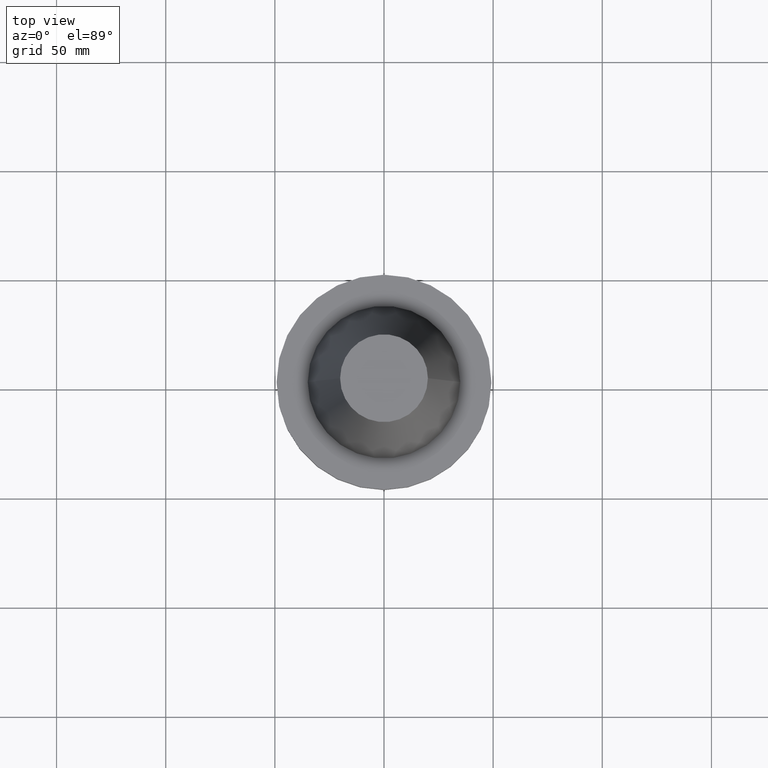
[diagram: clean part render]
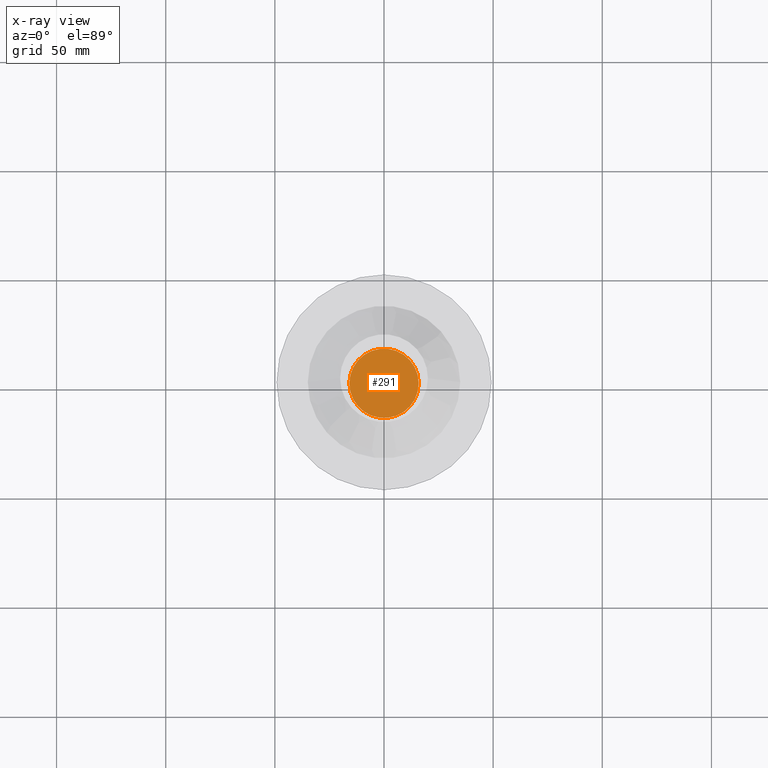
[diagram: x-ray — body ghosted, one internal face saturated and labeled with its STEP entity id]
A machine part, top view, then the same camera in x-ray: the body is ghosted and one INTERNAL B-rep face — a face not visible from any outside direction — is saturated and labeled: STEP entity #291.
In plain terms, the highlighted planar face has unit normal (0, -0, 1).
Its self-contained STEP definition (entity closure, byte-faithful):
#55 = DIRECTION ( 'NONE',  ( 1.000000000000000000, 0.000000000000000000, 0.000000000000000000 ) ) ;
#91 = CARTESIAN_POINT ( 'NONE',  ( 0.000000000000000000, 34.92499999999999716, -35.04999999999999716 ) ) ;
#121 = DIRECTION ( 'NONE',  ( 1.000000000000000000, 0.000000000000000000, 0.000000000000000000 ) ) ;
#133 = EDGE_CURVE ( 'NONE', #371, #552, #737, .T. ) ;
#162 = AXIS2_PLACEMENT_3D ( 'NONE', #189, #662, #121 ) ;
#165 = AXIS2_PLACEMENT_3D ( 'NONE', #183, #424, #55 ) ;
#183 = CARTESIAN_POINT ( 'NONE',  ( 0.000000000000000000, 0.000000000000000000, -35.04999999999999716 ) ) ;
#189 = CARTESIAN_POINT ( 'NONE',  ( 0.000000000000000000, 0.000000000000000000, -35.04999999999999716 ) ) ;
#210 = EDGE_CURVE ( 'NONE', #552, #371, #734, .T. ) ;
#240 = CARTESIAN_POINT ( 'NONE',  ( 15.87499999999999289, 0.000000000000000000, -35.04999999999999716 ) ) ;
#291 = ADVANCED_FACE ( 'NONE', ( #550 ), #434, .F. ) ;
#323 = DIRECTION ( 'NONE',  ( 1.000000000000000000, 0.000000000000000000, 0.000000000000000000 ) ) ;
#337 = CARTESIAN_POINT ( 'NONE',  ( -15.87499999999999289, 1.944126793646422449E-15, -35.04999999999999716 ) ) ;
#353 = AXIS2_PLACEMENT_3D ( 'NONE', #91, #682, #323 ) ;
#371 = VERTEX_POINT ( 'NONE', #337 ) ;
#424 = DIRECTION ( 'NONE',  ( -0.000000000000000000, -0.000000000000000000, 1.000000000000000000 ) ) ;
#434 = PLANE ( 'NONE',  #353 ) ;
#550 = FACE_OUTER_BOUND ( 'NONE', #567, .T. ) ;
#552 = VERTEX_POINT ( 'NONE', #240 ) ;
#558 = ORIENTED_EDGE ( 'NONE', *, *, #133, .F. ) ;
#567 = EDGE_LOOP ( 'NONE', ( #627, #558 ) ) ;
#627 = ORIENTED_EDGE ( 'NONE', *, *, #210, .F. ) ;
#662 = DIRECTION ( 'NONE',  ( -0.000000000000000000, -0.000000000000000000, 1.000000000000000000 ) ) ;
#682 = DIRECTION ( 'NONE',  ( 0.000000000000000000, -0.000000000000000000, 1.000000000000000000 ) ) ;
#734 = CIRCLE ( 'NONE', #162, 15.87499999999999289 ) ;
#737 = CIRCLE ( 'NONE', #165, 15.87499999999999289 ) ;